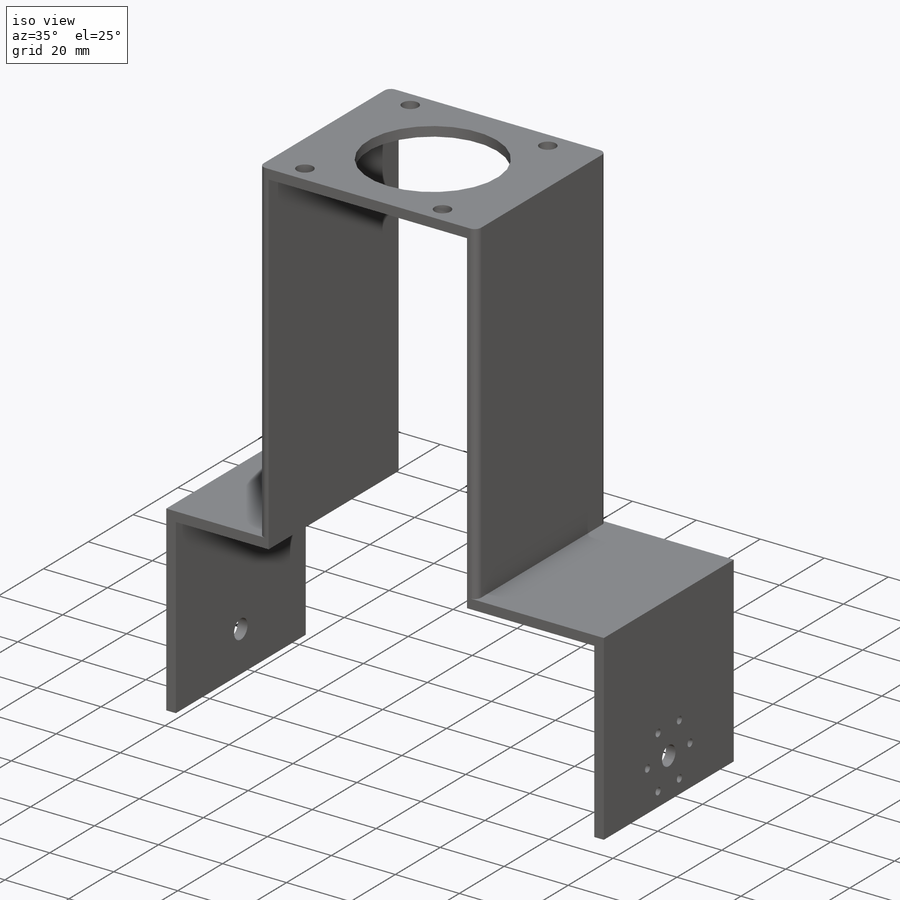
[diagram: iso view]
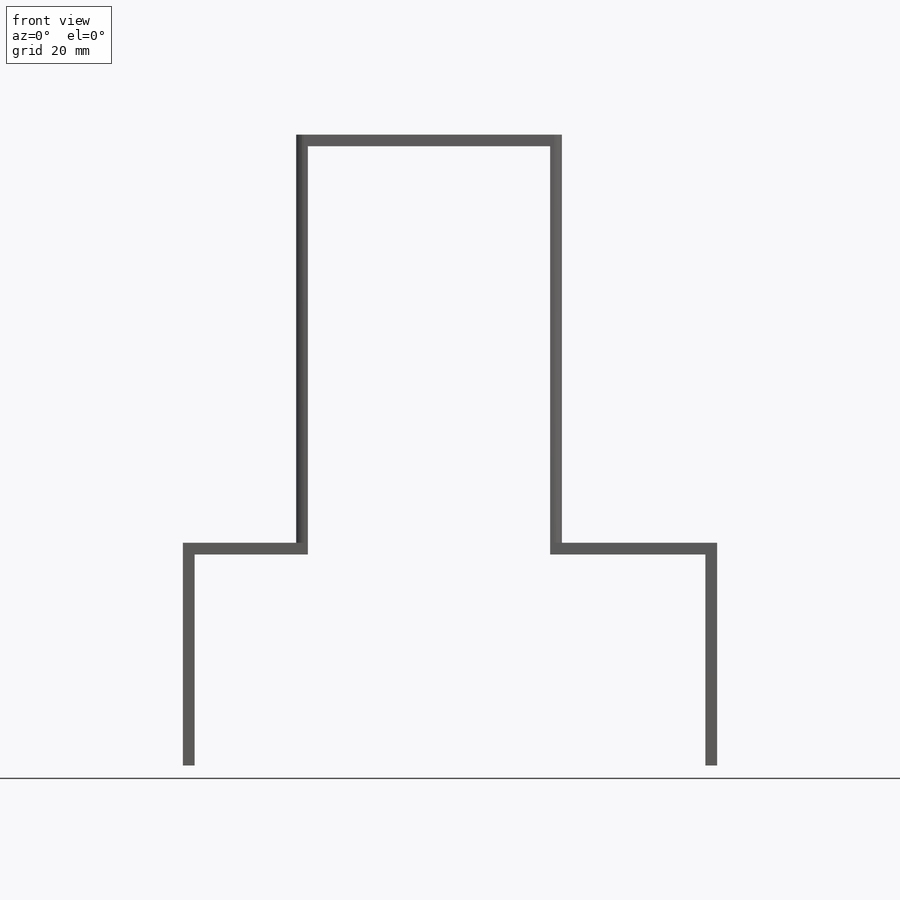
[diagram: front view]
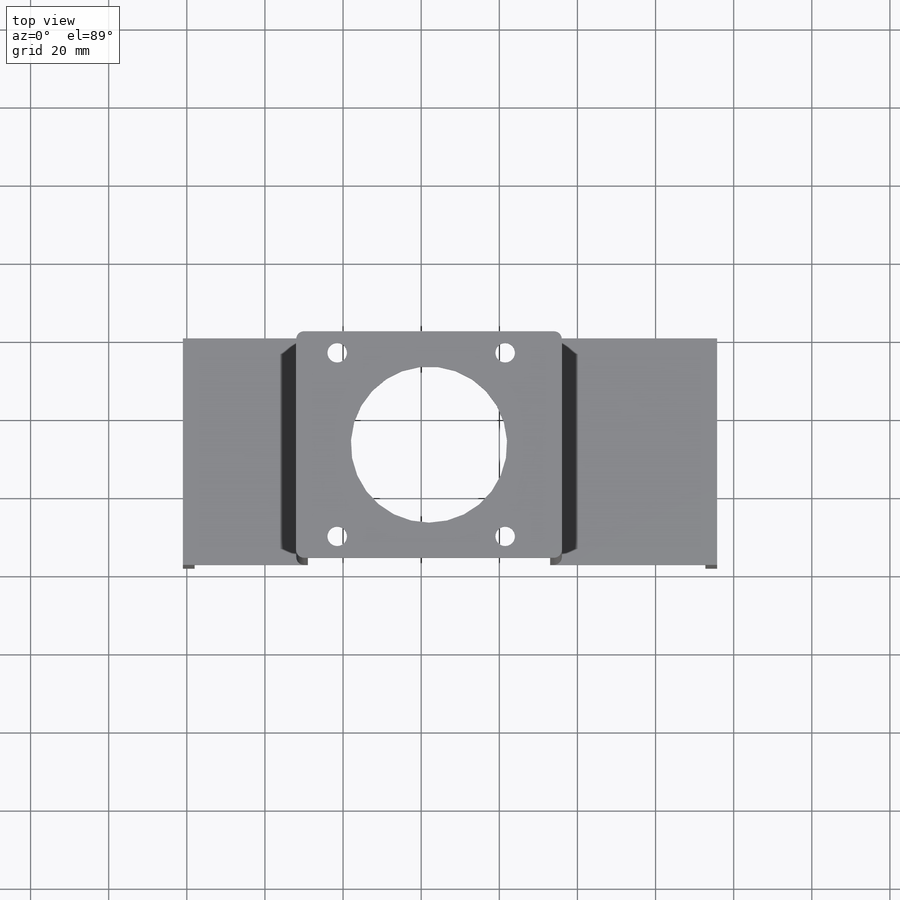
[diagram: top view]
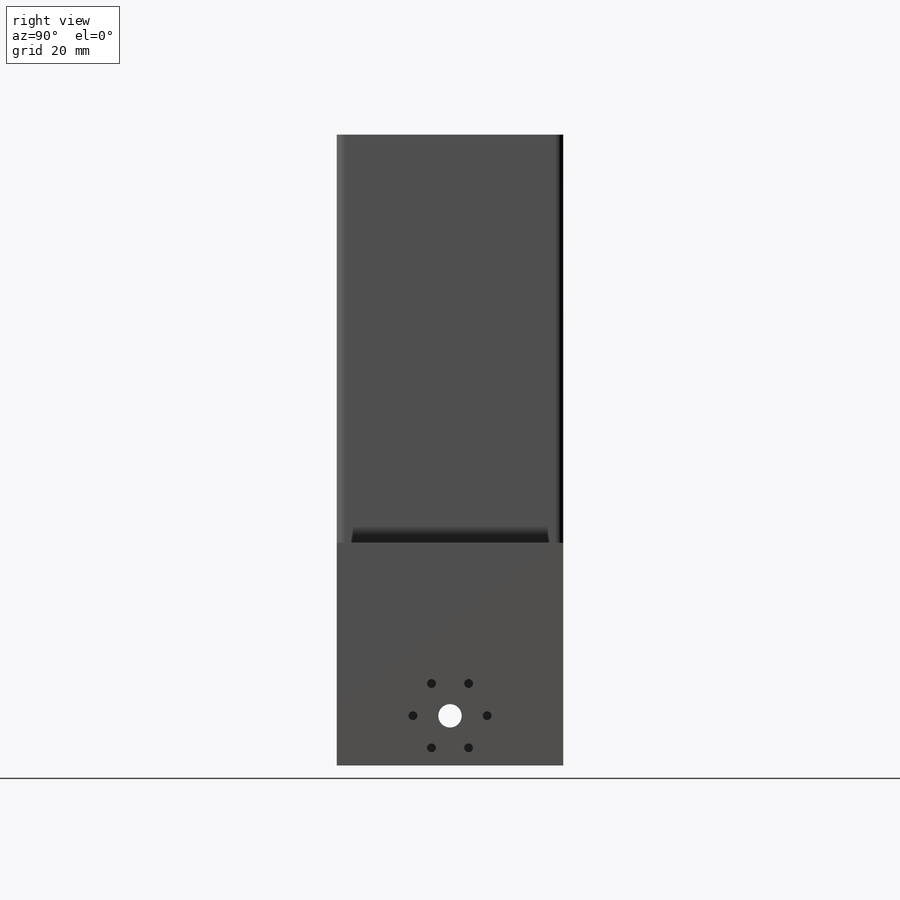
[diagram: right view]
SOLIDWORKS PART (.sldprt)
format: sldprt  version: not decoded by parser v0  size: 591,360 bytes
history: native  units: mm
features: sketch x8, thread x6, fillet x4, cut_extrude x3, material x1, extrude x1, hole x1 (+12 scaffold rows collapsed)
feature tree (36):
  scaffold x12  (default folders/planes/origin — collapsed)
  material  "1060 Alloy"
  sketch  "Sketch2"  dims[c1.D1=34.0mm c1.D2=104.5mm c1.D3=39.75mm c1.D4=57.0mm c1.D5=34.0mm c1.D6=29.0mm c1.D7=48.0mm c1.D8=57.0mm c2.D7=3.0mm]
  extrude  "Boss-Extrude1"  Depth=58mm
  sketch  "Sketch3"  dims[c1.D3=5.0mm c1.D4=40.0mm c1.D1=10.5mm c1.D2=5.5mm c2.D3=~17.127234mm c2.D4=~0.422708mm c2.D5=43.0mm]
  cut_extrude  "Cut-Extrude1"  Depth=58mm
  sketch  "Sketch5"  dims[c1.D2=6.0mm c1.D1=12.7mm c2.D2=29.0mm]
  cut_extrude  "Cut-Extrude3"  Depth=58mm
  sketch  "Sketch7"  dims[D1=~4.135495mm]
  sketch  "Sketch8"  dims[D1=19.0mm D2=~31.345057mm]
  hole  "#4-40 Tapped Hole2"  Diameter=2.2606mm Depth=7.6mm
  sketch  "Sketch14"  dims[D1=6.0]
  sketch  "Sketch13"  dims[hole-wizard template sketch: 50 standard entries collapsed; hole parameters above]
  thread  "Hole Thread7"  Diameter=3mm  [1 undecoded]
  thread  "Hole Thread8"  Diameter=3mm  [1 undecoded]
  thread  "Hole Thread9"  Diameter=3mm  [1 undecoded]
  thread  "Hole Thread10"  Diameter=3mm  [1 undecoded]
  thread  "Hole Thread11"  Diameter=3mm  [1 undecoded]
  thread  "Hole Thread12"  Diameter=3mm  [1 undecoded]
  sketch  "Sketch15"  dims[D1=6.0mm]
  cut_extrude  "Cut-Extrude4"  Depth=10mm
  fillet  "Fillet1"  Radius=2mm
  fillet  "Fillet2"  Radius=2mm
  fillet  "Fillet3"  Radius=2mm
  fillet  "Fillet4"  Radius=2mm
decode coverage: 23 of 23 modeling features carry decoded parameters
note: ~ marks probable driven/reference dimensions
note: 6 parameter values undecoded
note: suppression state not decoded; provenance and decode notes live in map.json
